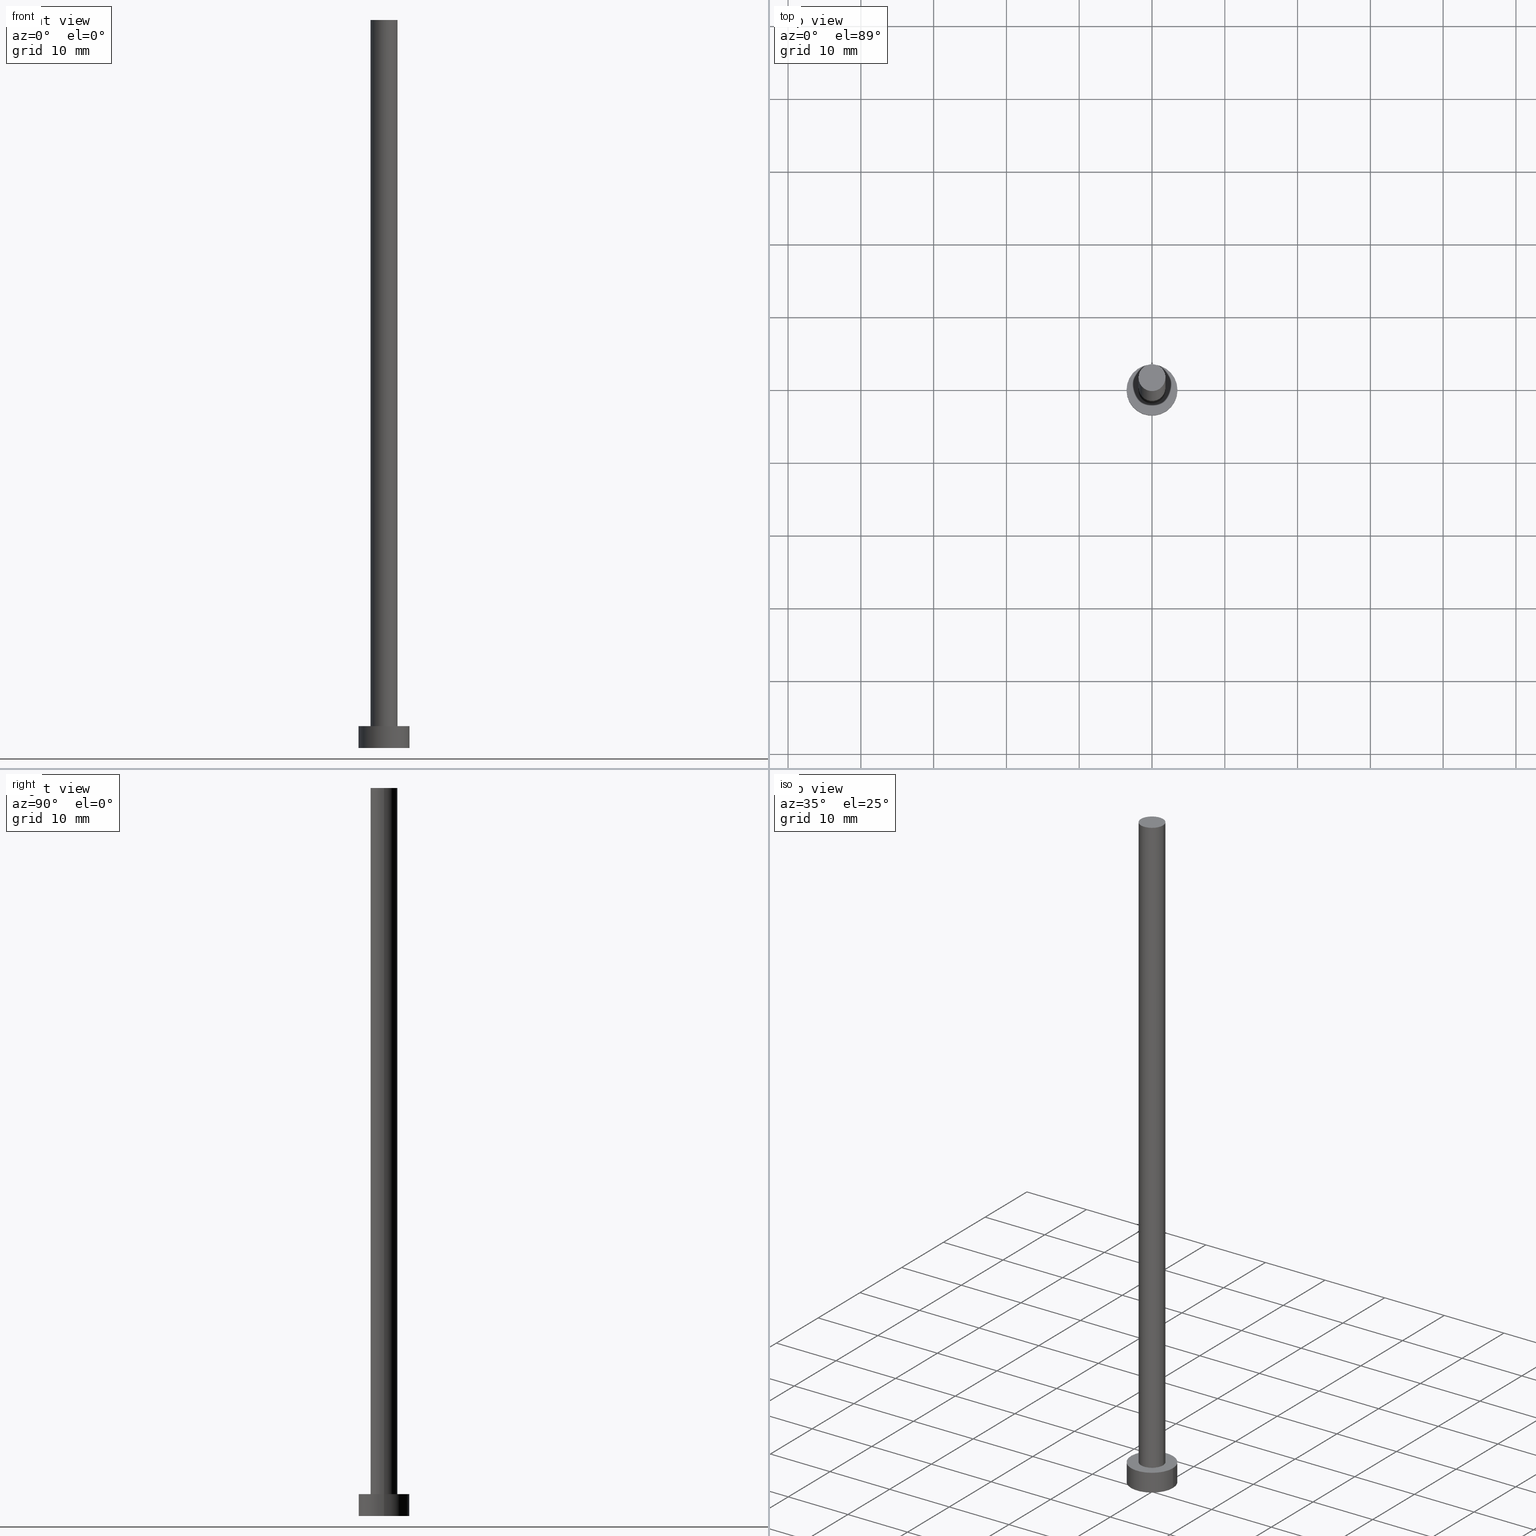
[diagram: canonical four-view strip — front | top / right | iso, engineering-drawing reading convention]
A machine part, canonical four-view strip (front | top / right | iso — engineering-drawing reading convention). The complete STEP part file that produces these views, byte-faithful:
ISO-10303-21;
HEADER;
FILE_DESCRIPTION (( 'STEP AP203' ),
    '1' );
FILE_NAME ('478c.STEP',
    '2026-02-06T12:43:27',
    ( '' ),
    ( '' ),
    'SwSTEP 2.0',
    'SolidWorks 2019',
    '' );
FILE_SCHEMA (( 'CONFIG_CONTROL_DESIGN' ));
ENDSEC;

DATA;
#1 = ORIENTED_EDGE ( 'NONE', *, *, #58, .F. ) ;
#2 = CARTESIAN_POINT ( 'NONE',  ( 3.500000000000000444, 4.286263797015737088E-16, 3.000000000000000000 ) ) ;
#3 = CIRCLE ( 'NONE', #37, 3.500000000000000444 ) ;
#4 = FACE_OUTER_BOUND ( 'NONE', #126, .T. ) ;
#5 = ORIENTED_EDGE ( 'NONE', *, *, #140, .T. ) ;
#6 = DIRECTION ( 'NONE',  ( 1.000000000000000000, 0.000000000000000000, -0.000000000000000000 ) ) ;
#7 = CIRCLE ( 'NONE', #154, 1.850000000000000089 ) ;
#8 = DIRECTION ( 'NONE',  ( -0.000000000000000000, -0.000000000000000000, -1.000000000000000000 ) ) ;
#9 = APPROVAL_ROLE ( '' ) ;
#10 = CARTESIAN_POINT ( 'NONE',  ( 0.000000000000000000, 0.000000000000000000, 3.000000000000000000 ) ) ;
#11 = APPROVAL_STATUS ( 'not_yet_approved' ) ;
#12 = FACE_BOUND ( 'NONE', #187, .T. ) ;
#13 = DIRECTION ( 'NONE',  ( 1.000000000000000000, 0.000000000000000000, 0.000000000000000000 ) ) ;
#14 = CIRCLE ( 'NONE', #211, 3.500000000000000444 ) ;
#15 = DATE_AND_TIME ( #91, #160 ) ;
#16 = CARTESIAN_POINT ( 'NONE',  ( 0.000000000000000000, 0.000000000000000000, 3.000000000000000000 ) ) ;
#17 = PERSON_AND_ORGANIZATION ( #106, #146 ) ;
#18 = UNCERTAINTY_MEASURE_WITH_UNIT (LENGTH_MEASURE( 1.000000000000000082E-05 ), #110, 'distance_accuracy_value', 'NONE');
#19 = CC_DESIGN_PERSON_AND_ORGANIZATION_ASSIGNMENT ( #118, #197, ( #28 ) ) ;
#20 = SHAPE_DEFINITION_REPRESENTATION ( #196, #68 ) ;
#21 = AXIS2_PLACEMENT_3D ( 'NONE', #156, #53, #32 ) ;
#22 = EDGE_CURVE ( 'NONE', #85, #244, #105, .T. ) ;
#23 = ORIENTED_EDGE ( 'NONE', *, *, #39, .T. ) ;
#24 = DIRECTION ( 'NONE',  ( 1.000000000000000000, 0.000000000000000000, 0.000000000000000000 ) ) ;
#25 = DIRECTION ( 'NONE',  ( 0.000000000000000000, 0.000000000000000000, 1.000000000000000000 ) ) ;
#26 = MECHANICAL_CONTEXT ( 'NONE', #96, 'mechanical' ) ;
#27 = PERSON_AND_ORGANIZATION ( #106, #146 ) ;
#28 = PRODUCT_DEFINITION_FORMATION_WITH_SPECIFIED_SOURCE ( 'LIBOVOLN�', '', #77, .NOT_KNOWN. ) ;
#29 = CYLINDRICAL_SURFACE ( 'NONE', #204, 1.850000000000000089 ) ;
#30 = FACE_OUTER_BOUND ( 'NONE', #122, .T. ) ;
#31 = PERSON_AND_ORGANIZATION_ROLE ( 'creator' ) ;
#32 = DIRECTION ( 'NONE',  ( 1.000000000000000000, 0.000000000000000000, -0.000000000000000000 ) ) ;
#33 = COORDINATED_UNIVERSAL_TIME_OFFSET ( 1, 0, .AHEAD. ) ;
#34 = CARTESIAN_POINT ( 'NONE',  ( 0.000000000000000000, 0.000000000000000000, 0.000000000000000000 ) ) ;
#35 = ADVANCED_FACE ( 'NONE', ( #4 ), #243, .T. ) ;
#36 = PRODUCT_DEFINITION ( 'NEZN�M�', '', #28, #190 ) ;
#37 = AXIS2_PLACEMENT_3D ( 'NONE', #34, #208, #13 ) ;
#38 = ORIENTED_EDGE ( 'NONE', *, *, #58, .T. ) ;
#39 = EDGE_CURVE ( 'NONE', #59, #102, #174, .T. ) ;
#40 = LOCAL_TIME ( 13, 43, 27.00000000000000000, #33 ) ;
#41 = ORIENTED_EDGE ( 'NONE', *, *, #39, .F. ) ;
#42 = ORIENTED_EDGE ( 'NONE', *, *, #22, .T. ) ;
#43 = PRODUCT_RELATED_PRODUCT_CATEGORY ( 'detail', '', ( #77 ) ) ;
#44 = ORIENTED_EDGE ( 'NONE', *, *, #253, .F. ) ;
#45 = CC_DESIGN_APPROVAL ( #74, ( #36 ) ) ;
#46 = ORIENTED_EDGE ( 'NONE', *, *, #103, .F. ) ;
#47 = APPLICATION_PROTOCOL_DEFINITION ( 'international standard', 'config_control_design', 1994, #96 ) ;
#48 = CARTESIAN_POINT ( 'NONE',  ( 0.000000000000000000, 0.000000000000000000, 0.000000000000000000 ) ) ;
#49 = CARTESIAN_POINT ( 'NONE',  ( 0.000000000000000000, 0.000000000000000000, 3.000000000000000000 ) ) ;
#50 = LOCAL_TIME ( 13, 43, 27.00000000000000000, #80 ) ;
#51 = CARTESIAN_POINT ( 'NONE',  ( 0.000000000000000000, 0.000000000000000000, 0.000000000000000000 ) ) ;
#52 = DATE_TIME_ROLE ( 'creation_date' ) ;
#53 = DIRECTION ( 'NONE',  ( 0.000000000000000000, 0.000000000000000000, 1.000000000000000000 ) ) ;
#54 = CARTESIAN_POINT ( 'NONE',  ( 1.850000000000000089, 2.265596578422602607E-16, 100.0000000000000000 ) ) ;
#55 = PERSON_AND_ORGANIZATION ( #106, #146 ) ;
#56 = DIRECTION ( 'NONE',  ( 1.000000000000000000, 0.000000000000000000, 0.000000000000000000 ) ) ;
#57 = AXIS2_PLACEMENT_3D ( 'NONE', #188, #192, #150 ) ;
#58 = EDGE_CURVE ( 'NONE', #244, #168, #3, .T. ) ;
#59 = VERTEX_POINT ( 'NONE', #138 ) ;
#60 = APPLICATION_CONTEXT ( 'configuration controlled 3d designs of mechanical parts and assemblies' ) ;
#61 = AXIS2_PLACEMENT_3D ( 'NONE', #48, #65, #89 ) ;
#62 = ORIENTED_EDGE ( 'NONE', *, *, #140, .F. ) ;
#63 = CC_DESIGN_PERSON_AND_ORGANIZATION_ASSIGNMENT ( #155, #31, ( #28 ) ) ;
#64 = ORIENTED_EDGE ( 'NONE', *, *, #109, .T. ) ;
#65 = DIRECTION ( 'NONE',  ( 0.000000000000000000, 0.000000000000000000, 1.000000000000000000 ) ) ;
#66 = APPLICATION_PROTOCOL_DEFINITION ( 'international standard', 'config_control_design', 1994, #60 ) ;
#67 = CARTESIAN_POINT ( 'NONE',  ( -3.500000000000000444, 0.000000000000000000, 3.000000000000000000 ) ) ;
#68 = ADVANCED_BREP_SHAPE_REPRESENTATION ( '478c', ( #180, #61 ), #139 ) ;
#69 = CARTESIAN_POINT ( 'NONE',  ( 3.500000000000000444, 4.286263797015737088E-16, 0.000000000000000000 ) ) ;
#70 = APPROVAL_STATUS ( 'not_yet_approved' ) ;
#71 = DIRECTION ( 'NONE',  ( -1.000000000000000000, 0.000000000000000000, 0.000000000000000000 ) ) ;
#72 = CC_DESIGN_APPROVAL ( #186, ( #206 ) ) ;
#73 = FACE_OUTER_BOUND ( 'NONE', #127, .T. ) ;
#74 = APPROVAL ( #70, 'NEUR�EN�' ) ;
#75 = DIRECTION ( 'NONE',  ( 0.000000000000000000, 0.000000000000000000, 1.000000000000000000 ) ) ;
#76 = DIRECTION ( 'NONE',  ( 0.000000000000000000, 0.000000000000000000, 1.000000000000000000 ) ) ;
#77 = PRODUCT ( '478c', '478c', '', ( #26 ) ) ;
#78 = CALENDAR_DATE ( 2026, 6, 2 ) ;
#79 = APPROVAL_PERSON_ORGANIZATION ( #27, #117, #9 ) ;
#80 = COORDINATED_UNIVERSAL_TIME_OFFSET ( 1, 0, .AHEAD. ) ;
#81 = EDGE_LOOP ( 'NONE', ( #44, #207, #184, #41 ) ) ;
#82 = CARTESIAN_POINT ( 'NONE',  ( 0.000000000000000000, 0.000000000000000000, 3.000000000000000000 ) ) ;
#83 = ADVANCED_FACE ( 'NONE', ( #249 ), #29, .T. ) ;
#84 = VERTEX_POINT ( 'NONE', #251 ) ;
#85 = VERTEX_POINT ( 'NONE', #252 ) ;
#86 = AXIS2_PLACEMENT_3D ( 'NONE', #49, #235, #234 ) ;
#87 =( NAMED_UNIT ( * ) PLANE_ANGLE_UNIT ( ) SI_UNIT ( $, .RADIAN. ) );
#88 = CARTESIAN_POINT ( 'NONE',  ( 0.000000000000000000, 0.000000000000000000, 3.000000000000000000 ) ) ;
#89 = DIRECTION ( 'NONE',  ( 1.000000000000000000, 0.000000000000000000, 0.000000000000000000 ) ) ;
#90 = CARTESIAN_POINT ( 'NONE',  ( 0.000000000000000000, 0.000000000000000000, 3.000000000000000000 ) ) ;
#91 = CALENDAR_DATE ( 2026, 6, 2 ) ;
#92 = PLANE ( 'NONE',  #21 ) ;
#93 = EDGE_CURVE ( 'NONE', #166, #168, #157, .T. ) ;
#94 = PERSON_AND_ORGANIZATION ( #106, #146 ) ;
#95 = LINE ( 'NONE', #54, #124 ) ;
#96 = APPLICATION_CONTEXT ( 'configuration controlled 3d designs of mechanical parts and assemblies' ) ;
#97 = PERSON_AND_ORGANIZATION_ROLE ( 'creator' ) ;
#98 = DIRECTION ( 'NONE',  ( -1.000000000000000000, 0.000000000000000000, 0.000000000000000000 ) ) ;
#99 = CC_DESIGN_PERSON_AND_ORGANIZATION_ASSIGNMENT ( #55, #233, ( #77 ) ) ;
#100 = APPROVAL_ROLE ( '' ) ;
#101 = CC_DESIGN_APPROVAL ( #117, ( #28 ) ) ;
#102 = VERTEX_POINT ( 'NONE', #193 ) ;
#103 = EDGE_CURVE ( 'NONE', #166, #85, #14, .T. ) ;
#104 = CIRCLE ( 'NONE', #254, 1.850000000000000089 ) ;
#105 = LINE ( 'NONE', #2, #123 ) ;
#106 = PERSON ( 'NEUR�EN�', 'NEUR�EN�', 'NEUR�EN�', ('NEUR�EN�'), ('NEUR�EN�'), ('NEUR�EN�') ) ;
#107 = EDGE_LOOP ( 'NONE', ( #62, #42, #38, #225 ) ) ;
#108 = AXIS2_PLACEMENT_3D ( 'NONE', #195, #246, #71 ) ;
#109 = EDGE_CURVE ( 'NONE', #59, #84, #133, .T. ) ;
#110 =( LENGTH_UNIT ( ) NAMED_UNIT ( * ) SI_UNIT ( .MILLI., .METRE. ) );
#111 = CARTESIAN_POINT ( 'NONE',  ( 0.000000000000000000, 0.000000000000000000, 100.0000000000000000 ) ) ;
#112 = AXIS2_PLACEMENT_3D ( 'NONE', #10, #75, #152 ) ;
#113 = DIRECTION ( 'NONE',  ( -0.000000000000000000, -0.000000000000000000, -1.000000000000000000 ) ) ;
#114 = FACE_OUTER_BOUND ( 'NONE', #142, .T. ) ;
#115 = COORDINATED_UNIVERSAL_TIME_OFFSET ( 1, 0, .AHEAD. ) ;
#116 = CARTESIAN_POINT ( 'NONE',  ( -1.850000000000000089, 0.000000000000000000, 100.0000000000000000 ) ) ;
#117 = APPROVAL ( #11, 'NEUR�EN�' ) ;
#118 = PERSON_AND_ORGANIZATION ( #106, #146 ) ;
#119 = CARTESIAN_POINT ( 'NONE',  ( 0.000000000000000000, 0.000000000000000000, 100.0000000000000000 ) ) ;
#120 = DIRECTION ( 'NONE',  ( 1.000000000000000000, 0.000000000000000000, 0.000000000000000000 ) ) ;
#121 = AXIS2_PLACEMENT_3D ( 'NONE', #135, #245, #98 ) ;
#122 = EDGE_LOOP ( 'NONE', ( #64, #129 ) ) ;
#123 = VECTOR ( 'NONE', #242, 1000.000000000000000 ) ;
#124 = VECTOR ( 'NONE', #217, 1000.000000000000000 ) ;
#125 = ADVANCED_FACE ( 'NONE', ( #12, #158 ), #198, .T. ) ;
#126 = EDGE_LOOP ( 'NONE', ( #203, #148, #23, #240 ) ) ;
#127 = EDGE_LOOP ( 'NONE', ( #202, #46, #221, #130 ) ) ;
#128 = LOCAL_TIME ( 13, 43, 27.00000000000000000, #182 ) ;
#129 = ORIENTED_EDGE ( 'NONE', *, *, #253, .T. ) ;
#130 = ORIENTED_EDGE ( 'NONE', *, *, #185, .T. ) ;
#131 = PLANE ( 'NONE',  #191 ) ;
#132 = CARTESIAN_POINT ( 'NONE',  ( 1.850000000000000089, 2.265596578422602607E-16, 3.000000000000000000 ) ) ;
#133 = CIRCLE ( 'NONE', #163, 1.850000000000000089 ) ;
#134 = COORDINATED_UNIVERSAL_TIME_OFFSET ( 1, 0, .AHEAD. ) ;
#135 = CARTESIAN_POINT ( 'NONE',  ( 0.000000000000000000, 0.000000000000000000, 100.0000000000000000 ) ) ;
#136 = APPROVAL_DATE_TIME ( #248, #117 ) ;
#137 = DIRECTION ( 'NONE',  ( 1.000000000000000000, 0.000000000000000000, 0.000000000000000000 ) ) ;
#138 = CARTESIAN_POINT ( 'NONE',  ( -1.850000000000000089, 0.000000000000000000, 100.0000000000000000 ) ) ;
#139 =( GEOMETRIC_REPRESENTATION_CONTEXT ( 3 ) GLOBAL_UNCERTAINTY_ASSIGNED_CONTEXT ( ( #18 ) ) GLOBAL_UNIT_ASSIGNED_CONTEXT ( ( #110, #87, #170 ) ) REPRESENTATION_CONTEXT ( 'NONE', 'WORKASPACE' ) );
#140 = EDGE_CURVE ( 'NONE', #85, #166, #222, .T. ) ;
#141 = PERSON_AND_ORGANIZATION ( #106, #146 ) ;
#142 = EDGE_LOOP ( 'NONE', ( #147, #1 ) ) ;
#143 = CIRCLE ( 'NONE', #57, 1.850000000000000089 ) ;
#144 = APPROVAL_DATE_TIME ( #220, #186 ) ;
#145 = EDGE_CURVE ( 'NONE', #84, #167, #95, .T. ) ;
#146 = ORGANIZATION ( 'NEUR�EN�', 'NEUR�EN�', '' ) ;
#147 = ORIENTED_EDGE ( 'NONE', *, *, #185, .F. ) ;
#148 = ORIENTED_EDGE ( 'NONE', *, *, #109, .F. ) ;
#149 = ADVANCED_FACE ( 'NONE', ( #231 ), #199, .T. ) ;
#150 = DIRECTION ( 'NONE',  ( 1.000000000000000000, 0.000000000000000000, 0.000000000000000000 ) ) ;
#151 = CALENDAR_DATE ( 2026, 6, 2 ) ;
#152 = DIRECTION ( 'NONE',  ( 1.000000000000000000, 0.000000000000000000, -0.000000000000000000 ) ) ;
#153 = DIRECTION ( 'NONE',  ( 0.000000000000000000, 0.000000000000000000, 1.000000000000000000 ) ) ;
#154 = AXIS2_PLACEMENT_3D ( 'NONE', #88, #171, #137 ) ;
#155 = PERSON_AND_ORGANIZATION ( #106, #146 ) ;
#156 = CARTESIAN_POINT ( 'NONE',  ( 0.000000000000000000, 0.000000000000000000, 100.0000000000000000 ) ) ;
#157 = LINE ( 'NONE', #229, #238 ) ;
#158 = FACE_OUTER_BOUND ( 'NONE', #169, .T. ) ;
#159 = EDGE_CURVE ( 'NONE', #102, #167, #7, .T. ) ;
#160 = LOCAL_TIME ( 13, 43, 27.00000000000000000, #134 ) ;
#161 = SECURITY_CLASSIFICATION_LEVEL ( 'unclassified' ) ;
#162 = CC_DESIGN_DATE_AND_TIME_ASSIGNMENT ( #209, #52, ( #36 ) ) ;
#163 = AXIS2_PLACEMENT_3D ( 'NONE', #111, #76, #120 ) ;
#164 = CALENDAR_DATE ( 2026, 6, 2 ) ;
#165 = ORIENTED_EDGE ( 'NONE', *, *, #103, .T. ) ;
#166 = VERTEX_POINT ( 'NONE', #67 ) ;
#167 = VERTEX_POINT ( 'NONE', #132 ) ;
#168 = VERTEX_POINT ( 'NONE', #210 ) ;
#169 = EDGE_LOOP ( 'NONE', ( #165, #5 ) ) ;
#170 =( NAMED_UNIT ( * ) SI_UNIT ( $, .STERADIAN. ) SOLID_ANGLE_UNIT ( ) );
#171 = DIRECTION ( 'NONE',  ( 0.000000000000000000, 0.000000000000000000, 1.000000000000000000 ) ) ;
#172 = DIRECTION ( 'NONE',  ( 0.000000000000000000, 0.000000000000000000, 1.000000000000000000 ) ) ;
#173 = CYLINDRICAL_SURFACE ( 'NONE', #108, 3.500000000000000444 ) ;
#174 = LINE ( 'NONE', #116, #181 ) ;
#175 = CLOSED_SHELL ( 'NONE', ( #83, #149, #178, #125, #237, #35, #200 ) ) ;
#176 = PERSON_AND_ORGANIZATION ( #106, #146 ) ;
#177 = DIRECTION ( 'NONE',  ( -1.000000000000000000, 0.000000000000000000, 0.000000000000000000 ) ) ;
#178 = ADVANCED_FACE ( 'NONE', ( #73 ), #173, .T. ) ;
#179 = DIRECTION ( 'NONE',  ( -0.000000000000000000, -0.000000000000000000, -1.000000000000000000 ) ) ;
#180 = MANIFOLD_SOLID_BREP ( 'P�idat vysunut�m3', #175 ) ;
#181 = VECTOR ( 'NONE', #8, 1000.000000000000000 ) ;
#182 = COORDINATED_UNIVERSAL_TIME_OFFSET ( 1, 0, .AHEAD. ) ;
#183 = DATE_TIME_ROLE ( 'classification_date' ) ;
#184 = ORIENTED_EDGE ( 'NONE', *, *, #227, .T. ) ;
#185 = EDGE_CURVE ( 'NONE', #168, #244, #250, .T. ) ;
#186 = APPROVAL ( #219, 'NEUR�EN�' ) ;
#187 = EDGE_LOOP ( 'NONE', ( #228, #239 ) ) ;
#188 = CARTESIAN_POINT ( 'NONE',  ( 0.000000000000000000, 0.000000000000000000, 100.0000000000000000 ) ) ;
#189 = DIRECTION ( 'NONE',  ( -1.000000000000000000, 0.000000000000000000, 0.000000000000000000 ) ) ;
#190 = DESIGN_CONTEXT ( 'detailed design', #60, 'design' ) ;
#191 = AXIS2_PLACEMENT_3D ( 'NONE', #230, #153, #6 ) ;
#192 = DIRECTION ( 'NONE',  ( 0.000000000000000000, 0.000000000000000000, 1.000000000000000000 ) ) ;
#193 = CARTESIAN_POINT ( 'NONE',  ( -1.850000000000000089, 0.000000000000000000, 3.000000000000000000 ) ) ;
#194 = CALENDAR_DATE ( 2026, 6, 2 ) ;
#195 = CARTESIAN_POINT ( 'NONE',  ( 0.000000000000000000, 0.000000000000000000, 3.000000000000000000 ) ) ;
#196 = PRODUCT_DEFINITION_SHAPE ( 'NONE', 'NONE',  #36 ) ;
#197 = PERSON_AND_ORGANIZATION_ROLE ( 'design_supplier' ) ;
#198 = PLANE ( 'NONE',  #112 ) ;
#199 = CYLINDRICAL_SURFACE ( 'NONE', #241, 3.500000000000000444 ) ;
#200 = ADVANCED_FACE ( 'NONE', ( #30 ), #92, .T. ) ;
#201 = APPROVAL_PERSON_ORGANIZATION ( #141, #186, #100 ) ;
#202 = ORIENTED_EDGE ( 'NONE', *, *, #22, .F. ) ;
#203 = ORIENTED_EDGE ( 'NONE', *, *, #145, .F. ) ;
#204 = AXIS2_PLACEMENT_3D ( 'NONE', #119, #113, #177 ) ;
#205 = APPROVAL_PERSON_ORGANIZATION ( #94, #74, #214 ) ;
#206 = SECURITY_CLASSIFICATION ( '', '', #161 ) ;
#207 = ORIENTED_EDGE ( 'NONE', *, *, #145, .T. ) ;
#208 = DIRECTION ( 'NONE',  ( 0.000000000000000000, 0.000000000000000000, 1.000000000000000000 ) ) ;
#209 = DATE_AND_TIME ( #151, #40 ) ;
#210 = CARTESIAN_POINT ( 'NONE',  ( -3.500000000000000444, 0.000000000000000000, 0.000000000000000000 ) ) ;
#211 = AXIS2_PLACEMENT_3D ( 'NONE', #90, #25, #56 ) ;
#212 = APPROVAL_DATE_TIME ( #15, #74 ) ;
#213 = DIRECTION ( 'NONE',  ( 1.000000000000000000, 0.000000000000000000, 0.000000000000000000 ) ) ;
#214 = APPROVAL_ROLE ( '' ) ;
#215 = DIRECTION ( 'NONE',  ( 0.000000000000000000, 0.000000000000000000, 1.000000000000000000 ) ) ;
#216 = CC_DESIGN_PERSON_AND_ORGANIZATION_ASSIGNMENT ( #17, #224, ( #206 ) ) ;
#217 = DIRECTION ( 'NONE',  ( -0.000000000000000000, -0.000000000000000000, -1.000000000000000000 ) ) ;
#218 = LOCAL_TIME ( 13, 43, 27.00000000000000000, #115 ) ;
#219 = APPROVAL_STATUS ( 'not_yet_approved' ) ;
#220 = DATE_AND_TIME ( #78, #128 ) ;
#221 = ORIENTED_EDGE ( 'NONE', *, *, #93, .T. ) ;
#222 = CIRCLE ( 'NONE', #86, 3.500000000000000444 ) ;
#223 = CC_DESIGN_SECURITY_CLASSIFICATION ( #206, ( #28 ) ) ;
#224 = PERSON_AND_ORGANIZATION_ROLE ( 'classification_officer' ) ;
#225 = ORIENTED_EDGE ( 'NONE', *, *, #93, .F. ) ;
#226 = AXIS2_PLACEMENT_3D ( 'NONE', #51, #215, #213 ) ;
#227 = EDGE_CURVE ( 'NONE', #167, #102, #104, .T. ) ;
#228 = ORIENTED_EDGE ( 'NONE', *, *, #159, .F. ) ;
#229 = CARTESIAN_POINT ( 'NONE',  ( -3.500000000000000444, 0.000000000000000000, 3.000000000000000000 ) ) ;
#230 = CARTESIAN_POINT ( 'NONE',  ( 0.000000000000000000, 0.000000000000000000, 0.000000000000000000 ) ) ;
#231 = FACE_OUTER_BOUND ( 'NONE', #107, .T. ) ;
#232 = CC_DESIGN_DATE_AND_TIME_ASSIGNMENT ( #255, #183, ( #206 ) ) ;
#233 = PERSON_AND_ORGANIZATION_ROLE ( 'design_owner' ) ;
#234 = DIRECTION ( 'NONE',  ( 1.000000000000000000, 0.000000000000000000, 0.000000000000000000 ) ) ;
#235 = DIRECTION ( 'NONE',  ( 0.000000000000000000, 0.000000000000000000, 1.000000000000000000 ) ) ;
#236 = DIRECTION ( 'NONE',  ( -0.000000000000000000, -0.000000000000000000, -1.000000000000000000 ) ) ;
#237 = ADVANCED_FACE ( 'NONE', ( #114 ), #131, .F. ) ;
#238 = VECTOR ( 'NONE', #179, 1000.000000000000000 ) ;
#239 = ORIENTED_EDGE ( 'NONE', *, *, #227, .F. ) ;
#240 = ORIENTED_EDGE ( 'NONE', *, *, #159, .T. ) ;
#241 = AXIS2_PLACEMENT_3D ( 'NONE', #16, #236, #189 ) ;
#242 = DIRECTION ( 'NONE',  ( -0.000000000000000000, -0.000000000000000000, -1.000000000000000000 ) ) ;
#243 = CYLINDRICAL_SURFACE ( 'NONE', #121, 1.850000000000000089 ) ;
#244 = VERTEX_POINT ( 'NONE', #69 ) ;
#245 = DIRECTION ( 'NONE',  ( -0.000000000000000000, -0.000000000000000000, -1.000000000000000000 ) ) ;
#246 = DIRECTION ( 'NONE',  ( -0.000000000000000000, -0.000000000000000000, -1.000000000000000000 ) ) ;
#247 = CC_DESIGN_PERSON_AND_ORGANIZATION_ASSIGNMENT ( #176, #97, ( #36 ) ) ;
#248 = DATE_AND_TIME ( #194, #218 ) ;
#249 = FACE_OUTER_BOUND ( 'NONE', #81, .T. ) ;
#250 = CIRCLE ( 'NONE', #226, 3.500000000000000444 ) ;
#251 = CARTESIAN_POINT ( 'NONE',  ( 1.850000000000000089, 2.265596578422602607E-16, 100.0000000000000000 ) ) ;
#252 = CARTESIAN_POINT ( 'NONE',  ( 3.500000000000000444, 4.286263797015737088E-16, 3.000000000000000000 ) ) ;
#253 = EDGE_CURVE ( 'NONE', #84, #59, #143, .T. ) ;
#254 = AXIS2_PLACEMENT_3D ( 'NONE', #82, #172, #24 ) ;
#255 = DATE_AND_TIME ( #164, #50 ) ;
ENDSEC;
END-ISO-10303-21;
